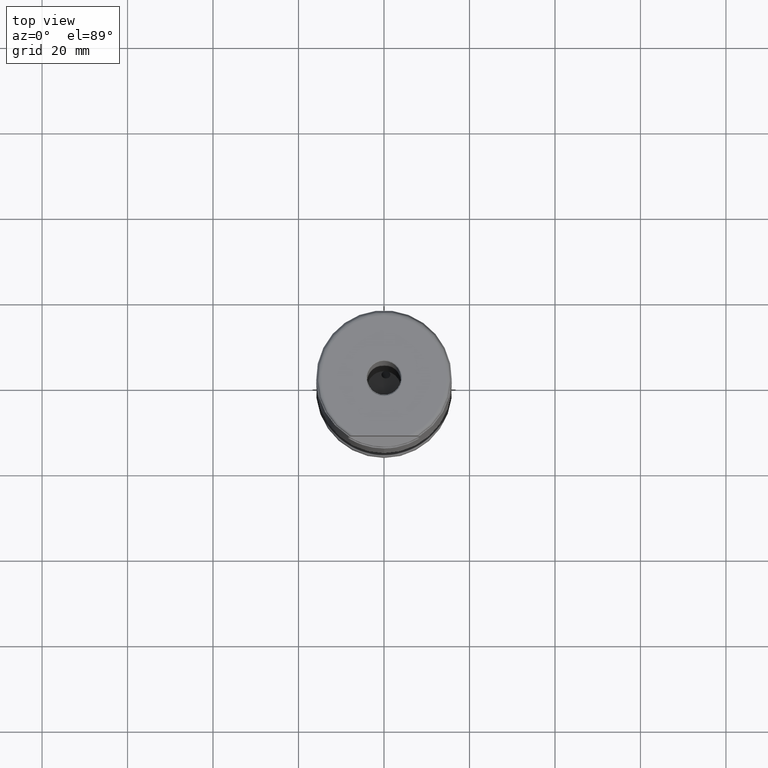
[diagram: clean part render]
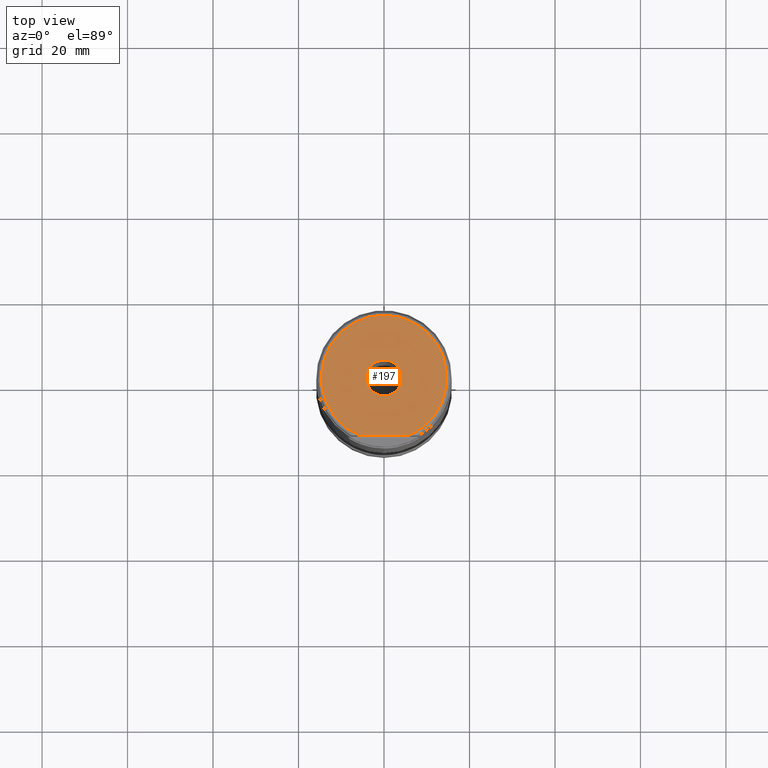
[diagram: same view with one face highlighted and labeled with its STEP entity id]
A machine part, top view. The second image highlights one B-rep face of the part: STEP entity #197.
In plain terms, the highlighted planar face has unit normal (0, 0, 1).
Its self-contained STEP definition (entity closure, byte-faithful):
#176=PLANE('',#1014);
#197=ADVANCED_FACE('',(#330,#331),#176,.T.);
#276=CIRCLE('',#1012,4.2);
#277=CIRCLE('',#1013,14.675);
#330=FACE_BOUND('',#436,.T.);
#331=FACE_BOUND('',#437,.T.);
#436=EDGE_LOOP('',(#594));
#437=EDGE_LOOP('',(#595,#596));
#552=LINE('',#1681,#565);
#565=VECTOR('',#1131,1.);
#594=ORIENTED_EDGE('',*,*,#859,.T.);
#595=ORIENTED_EDGE('',*,*,#860,.T.);
#596=ORIENTED_EDGE('',*,*,#861,.T.);
#780=VERTEX_POINT('',#1677);
#781=VERTEX_POINT('',#1679);
#782=VERTEX_POINT('',#1680);
#859=EDGE_CURVE('',#780,#780,#276,.T.);
#860=EDGE_CURVE('',#781,#782,#277,.T.);
#861=EDGE_CURVE('',#782,#781,#552,.T.);
#1012=AXIS2_PLACEMENT_3D('',#1676,#1127,#1128);
#1013=AXIS2_PLACEMENT_3D('',#1678,#1129,#1130);
#1014=AXIS2_PLACEMENT_3D('',#1682,#1132,#1133);
#1127=DIRECTION('',(0.,-1.17145536458252E-15,-1.));
#1128=DIRECTION('',(0.,-1.,0.));
#1129=DIRECTION('',(0.,1.17145536458252E-15,1.));
#1130=DIRECTION('',(0.,-1.,1.8913509789185E-15));
#1131=DIRECTION('',(1.,-7.17309531289991E-32,-6.12323399573676E-17));
#1132=DIRECTION('',(0.,1.17145536458252E-15,1.));
#1133=DIRECTION('',(0.,-1.,1.16573417585641E-15));
#1676=CARTESIAN_POINT('',(0.,1.93407280692575E-13,165.1));
#1677=CARTESIAN_POINT('',(0.,-4.19999999999981,165.1));
#1678=CARTESIAN_POINT('',(0.,1.93407280692575E-13,165.1));
#1679=CARTESIAN_POINT('',(5.78322282468843,-13.4873999999998,165.1));
#1680=CARTESIAN_POINT('',(-5.78322282468865,-13.4873999999998,165.1));
#1681=CARTESIAN_POINT('',(-17.5,-13.4873999999998,165.1));
#1682=CARTESIAN_POINT('',(0.,1.93407280692575E-13,165.1));